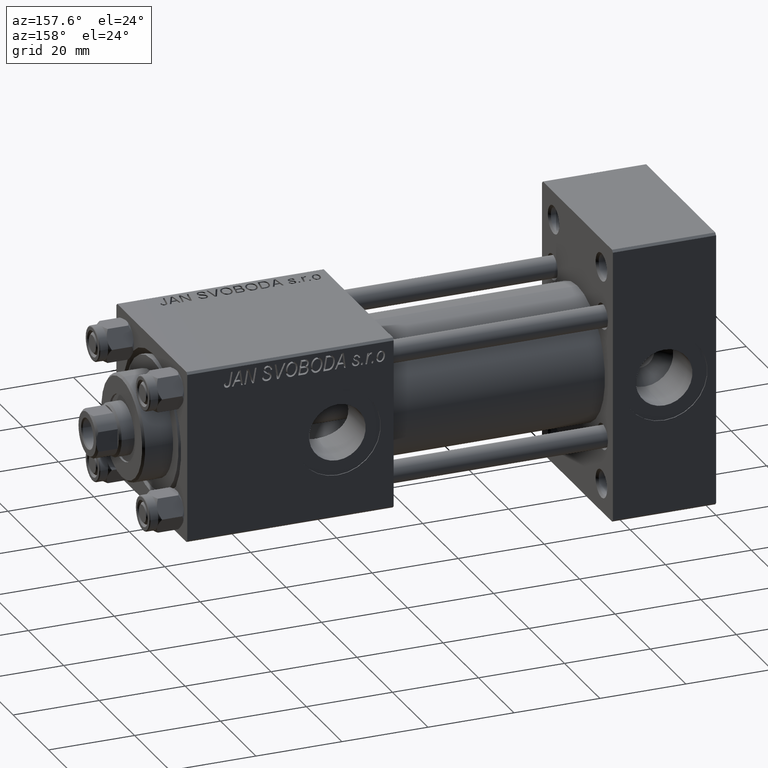
[diagram: clean part render]
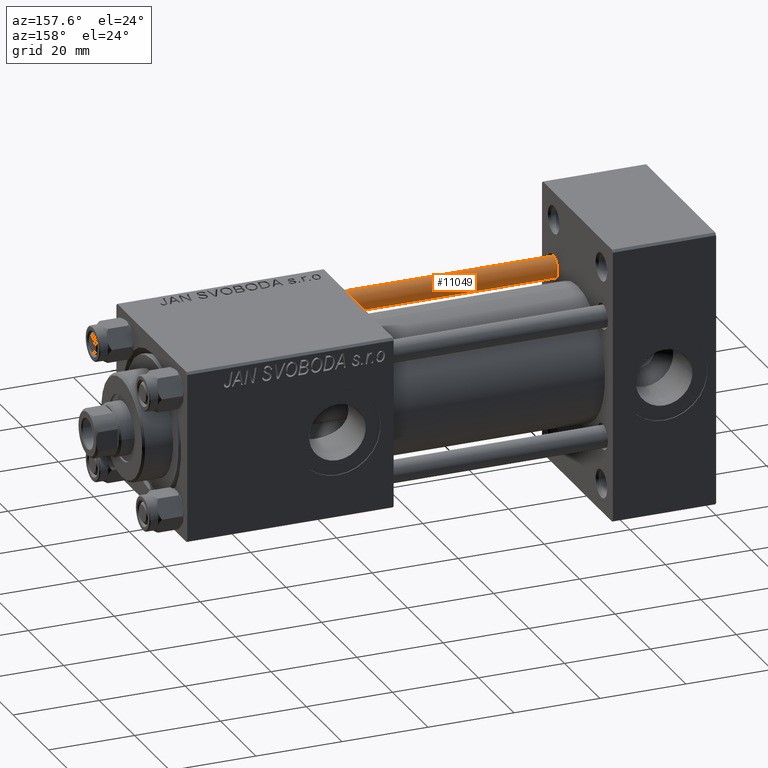
[diagram: same view with one face highlighted and labeled with its STEP entity id]
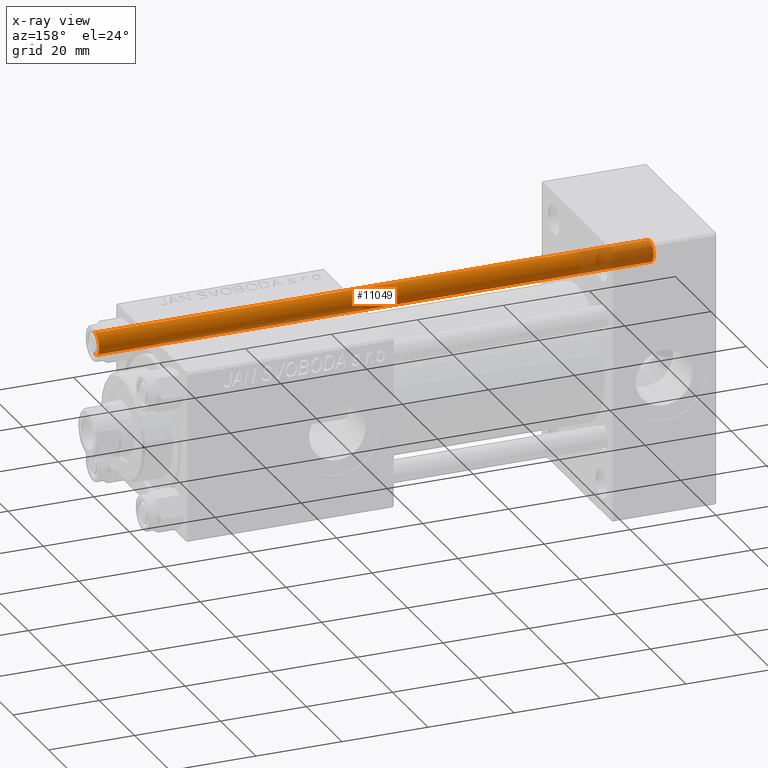
[diagram: x-ray of the same camera — body ghosted, the highlighted face saturated]
A machine part, auxiliary view. The second image highlights one B-rep face of the part: STEP entity #11049.
The next image is the same camera in x-ray: the body ghosted, the highlighted face saturated — about 17% of this face is hidden behind the body in this view.
In plain terms, the highlighted cylindrical surface (edge-blend (fillet) strip) has radius 2.5 mm, axis along (-1, 0, -0).
Its self-contained STEP definition (entity closure, byte-faithful):
#1051 = VECTOR ( 'NONE', #46144, 1000.000000000000000 ) ;
#1262 = CYLINDRICAL_SURFACE ( 'NONE', #2403, 2.500000000000000000 ) ;
#2403 = AXIS2_PLACEMENT_3D ( 'NONE', #9337, #29031, #32819 ) ;
#2769 = ORIENTED_EDGE ( 'NONE', *, *, #19750, .T. ) ;
#3396 = DIRECTION ( 'NONE',  ( -0.000000000000000000, -0.000000000000000000, 1.000000000000000000 ) ) ;
#5757 = ORIENTED_EDGE ( 'NONE', *, *, #35478, .F. ) ;
#9337 = CARTESIAN_POINT ( 'NONE',  ( 0.000000000000000000, 0.000000000000000000, 130.0000000000000000 ) ) ;
#10878 = CARTESIAN_POINT ( 'NONE',  ( -2.500000000000000000, 0.000000000000000000, 0.5000000000000281997 ) ) ;
#11049 = ADVANCED_FACE ( 'NONE', ( #43917 ), #1262, .T. ) ;
#11629 = VERTEX_POINT ( 'NONE', #44740 ) ;
#12617 = CARTESIAN_POINT ( 'NONE',  ( 0.000000000000000000, 0.000000000000000000, 129.5000000000000000 ) ) ;
#13634 = LINE ( 'NONE', #21194, #28123 ) ;
#14384 = EDGE_LOOP ( 'NONE', ( #17474, #2769, #46744, #5757 ) ) ;
#14389 = EDGE_CURVE ( 'NONE', #47734, #38909, #32350, .T. ) ;
#14922 = EDGE_CURVE ( 'NONE', #11629, #34804, #36423, .T. ) ;
#16138 = DIRECTION ( 'NONE',  ( 1.000000000000000000, 0.000000000000000000, 0.000000000000000000 ) ) ;
#16633 = DIRECTION ( 'NONE',  ( 0.000000000000000000, 0.000000000000000000, -1.000000000000000000 ) ) ;
#17474 = ORIENTED_EDGE ( 'NONE', *, *, #14922, .T. ) ;
#19092 = CARTESIAN_POINT ( 'NONE',  ( 2.500000000000000000, 3.061616997868383141E-16, 0.5000000000000281997 ) ) ;
#19383 = CARTESIAN_POINT ( 'NONE',  ( 2.500000000000000000, 3.061616997868383141E-16, 130.0000000000000000 ) ) ;
#19750 = EDGE_CURVE ( 'NONE', #34804, #47734, #45642, .T. ) ;
#20626 = CARTESIAN_POINT ( 'NONE',  ( 2.500000000000000000, 3.061616997868383141E-16, 129.5000000000000000 ) ) ;
#21194 = CARTESIAN_POINT ( 'NONE',  ( -2.500000000000000000, 0.000000000000000000, 130.0000000000000000 ) ) ;
#26710 = AXIS2_PLACEMENT_3D ( 'NONE', #46062, #3396, #49845 ) ;
#28123 = VECTOR ( 'NONE', #44659, 1000.000000000000000 ) ;
#28350 = AXIS2_PLACEMENT_3D ( 'NONE', #12617, #16633, #16138 ) ;
#29031 = DIRECTION ( 'NONE',  ( -0.000000000000000000, -0.000000000000000000, -1.000000000000000000 ) ) ;
#32350 = CIRCLE ( 'NONE', #26710, 2.500000000000000000 ) ;
#32819 = DIRECTION ( 'NONE',  ( -1.000000000000000000, 0.000000000000000000, 0.000000000000000000 ) ) ;
#34804 = VERTEX_POINT ( 'NONE', #20626 ) ;
#35478 = EDGE_CURVE ( 'NONE', #11629, #38909, #13634, .T. ) ;
#36423 = CIRCLE ( 'NONE', #28350, 2.500000000000000000 ) ;
#38909 = VERTEX_POINT ( 'NONE', #10878 ) ;
#43917 = FACE_OUTER_BOUND ( 'NONE', #14384, .T. ) ;
#44659 = DIRECTION ( 'NONE',  ( -0.000000000000000000, -0.000000000000000000, -1.000000000000000000 ) ) ;
#44740 = CARTESIAN_POINT ( 'NONE',  ( -2.500000000000000000, 0.000000000000000000, 129.5000000000000000 ) ) ;
#45642 = LINE ( 'NONE', #19383, #1051 ) ;
#46062 = CARTESIAN_POINT ( 'NONE',  ( 0.000000000000000000, 0.000000000000000000, 0.5000000000000281997 ) ) ;
#46144 = DIRECTION ( 'NONE',  ( -0.000000000000000000, -0.000000000000000000, -1.000000000000000000 ) ) ;
#46744 = ORIENTED_EDGE ( 'NONE', *, *, #14389, .T. ) ;
#47734 = VERTEX_POINT ( 'NONE', #19092 ) ;
#49845 = DIRECTION ( 'NONE',  ( 1.000000000000000000, 0.000000000000000000, 0.000000000000000000 ) ) ;